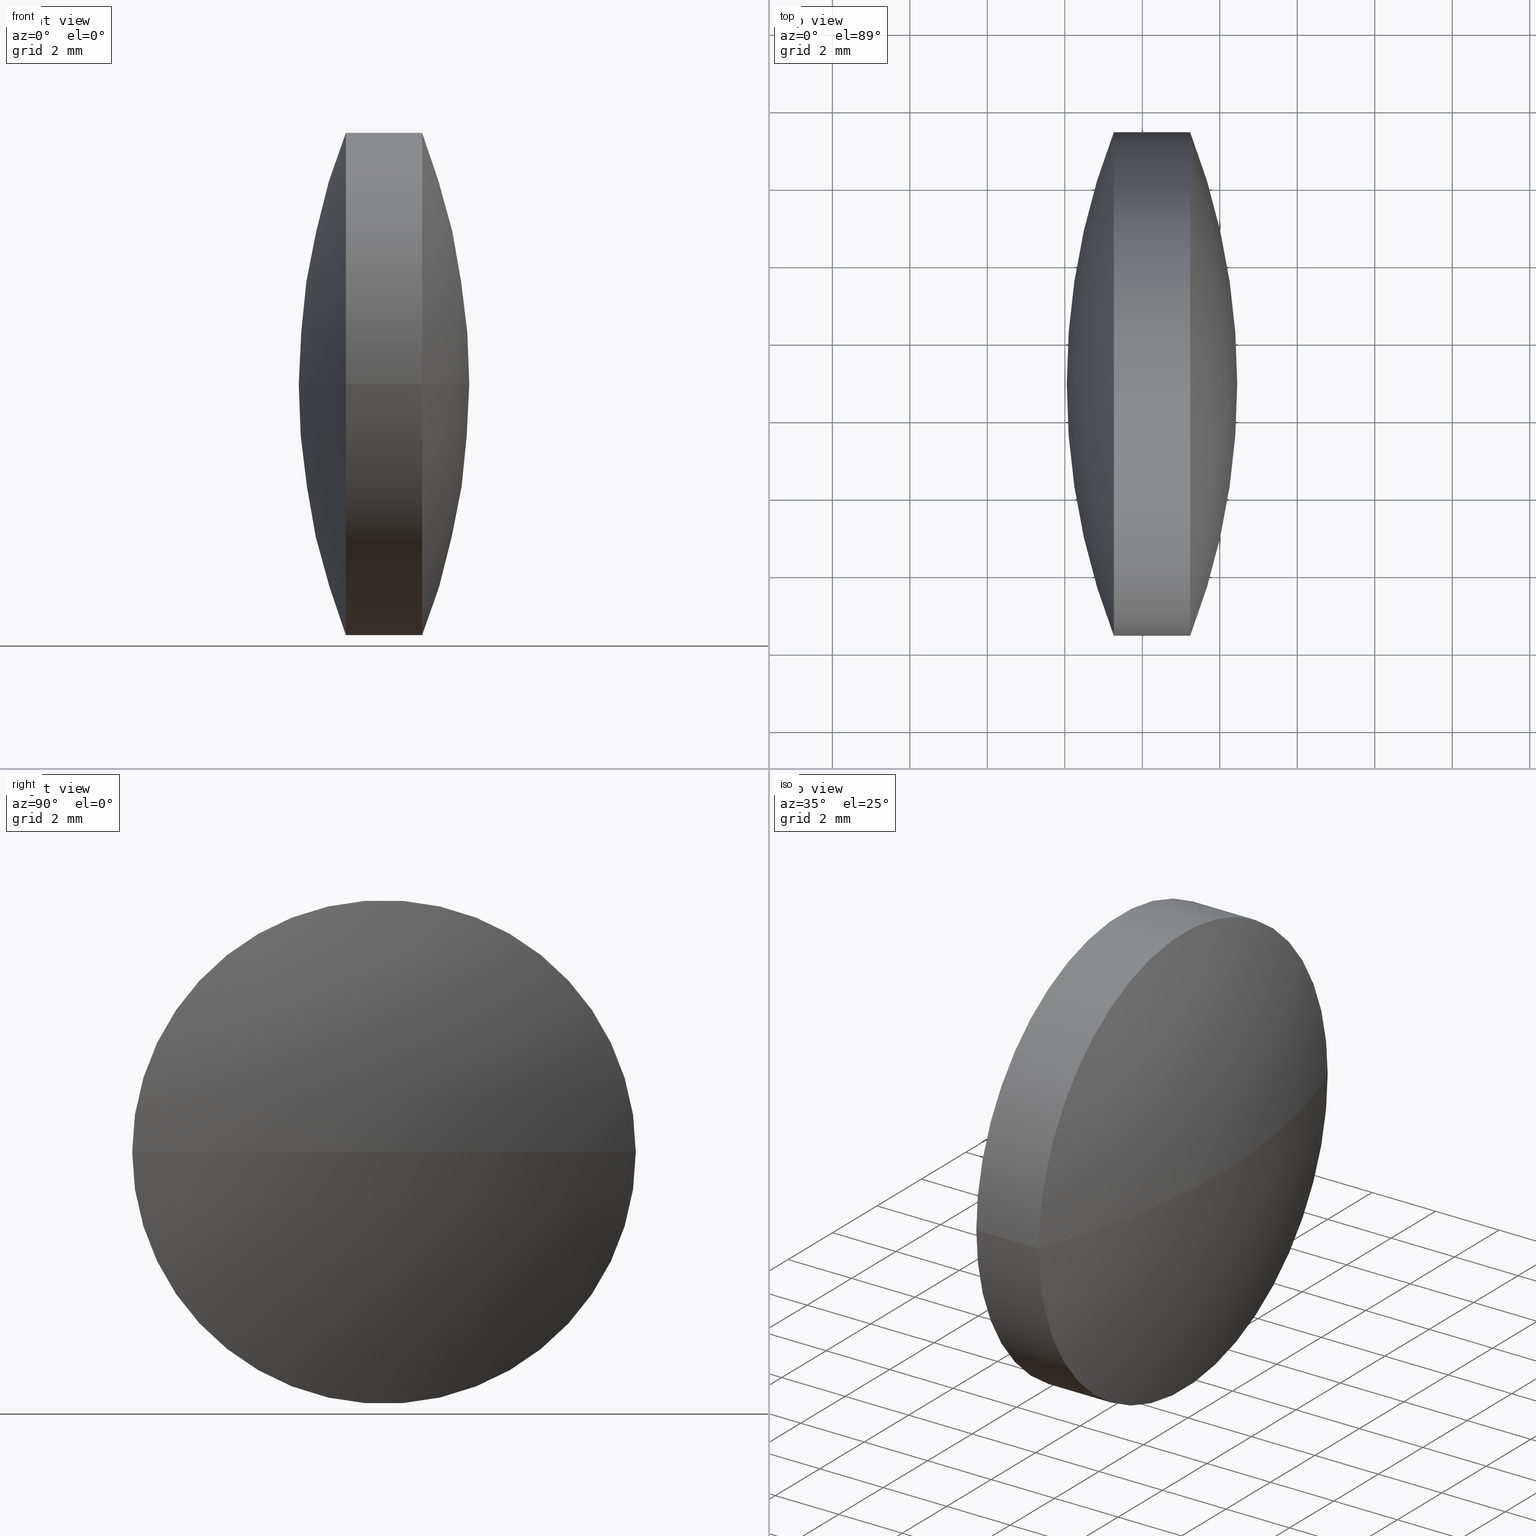
[diagram: canonical four-view strip — front | top / right | iso, engineering-drawing reading convention]
A machine part, canonical four-view strip (front | top / right | iso — engineering-drawing reading convention). The complete STEP part file that produces these views, byte-faithful:
ISO-10303-21;
HEADER;
FILE_DESCRIPTION (( 'STEP AP203' ),
    '1' );
FILE_NAME ('110013.STEP',
    '2019-06-25T02:01:48',
    ( '' ),
    ( '' ),
    'SwSTEP 2.0',
    'SolidWorks 2016',
    '' );
FILE_SCHEMA (( 'CONFIG_CONTROL_DESIGN' ));
ENDSEC;

DATA;
#1 = DATE_AND_TIME ( #101, #107 ) ;
#2 = CC_DESIGN_PERSON_AND_ORGANIZATION_ASSIGNMENT ( #259, #18, ( #289 ) ) ;
#3 = CARTESIAN_POINT ( 'NONE',  ( 28.45595245652157200, 24.88233366330319300, 0.0000000000000000000 ) ) ;
#4 = CIRCLE ( 'NONE', #180, 17.99443062946765100 ) ;
#5 = PERSON ( 'δָ��', 'δָ��', 'δָ��', ('δָ��'), ('δָ��'), ('δָ��') ) ;
#6 = ORIENTED_EDGE ( 'NONE', *, *, #212, .F. ) ;
#7 = PRODUCT_DEFINITION_FORMATION_WITH_SPECIFIED_SOURCE ( '�κ�', '', #279, .NOT_KNOWN. ) ;
#8 = LOCAL_TIME ( 10, 1, 48.00000000000000000, #188 ) ;
#9 = DATE_AND_TIME ( #271, #120 ) ;
#10 = FACE_OUTER_BOUND ( 'NONE', #281, .T. ) ;
#11 = PERSON_AND_ORGANIZATION_ROLE ( 'classification_officer' ) ;
#12 = ORIENTED_EDGE ( 'NONE', *, *, #57, .F. ) ;
#13 = DIRECTION ( 'NONE',  ( 0.0000000000000000000, 0.0000000000000000000, -1.000000000000000000 ) ) ;
#14 = APPROVAL_PERSON_ORGANIZATION ( #122, #84, #126 ) ;
#15 =( LENGTH_UNIT ( ) NAMED_UNIT ( * ) SI_UNIT ( .MILLI., .METRE. ) );
#16 = PRODUCT_RELATED_PRODUCT_CATEGORY ( 'detail', '', ( #283 ) ) ;
#17 = CARTESIAN_POINT ( 'NONE',  ( 28.45595245652157200, 24.88233366330319300, 0.0000000000000000000 ) ) ;
#18 = PERSON_AND_ORGANIZATION_ROLE ( 'design_supplier' ) ;
#19 = CALENDAR_DATE ( 2019, 25, 6 ) ;
#20 = DIRECTION ( 'NONE',  ( -0.0000000000000000000, 0.0000000000000000000, 1.000000000000000000 ) ) ;
#21 = PERSON_AND_ORGANIZATION_ROLE ( 'creator' ) ;
#22 = CARTESIAN_POINT ( 'NONE',  ( 60.04481371545662700, 24.88233366330322100, 0.0000000000000000000 ) ) ;
#23 = CALENDAR_DATE ( 2019, 25, 6 ) ;
#24 = CARTESIAN_POINT ( 'NONE',  ( 60.04481371545662700, 24.88233366330322100, 0.0000000000000000000 ) ) ;
#25 = SHAPE_DEFINITION_REPRESENTATION ( #223, #191 ) ;
#26 = AXIS2_PLACEMENT_3D ( 'NONE', #78, #264, #142 ) ;
#27 = CIRCLE ( 'NONE', #69, 17.99443062946765100 ) ;
#28 = COORDINATED_UNIVERSAL_TIME_OFFSET ( 8, 0, .AHEAD. ) ;
#29 = APPROVAL_DATE_TIME ( #288, #76 ) ;
#30 = ORIENTED_EDGE ( 'NONE', *, *, #162, .T. ) ;
#31 = ORIENTED_EDGE ( 'NONE', *, *, #145, .F. ) ;
#32 = PRODUCT_RELATED_PRODUCT_CATEGORY ( 'detail', '', ( #279 ) ) ;
#33 = PERSON_AND_ORGANIZATION ( #5, #136 ) ;
#34 = APPLICATION_CONTEXT ( 'configuration controlled 3d designs of mechanical parts and assemblies' ) ;
#35 = DIRECTION ( 'NONE',  ( -0.0000000000000000000, 0.0000000000000000000, -1.000000000000000000 ) ) ;
#36 = AXIS2_PLACEMENT_3D ( 'NONE', #17, #20, #103 ) ;
#37 = CYLINDRICAL_SURFACE ( 'NONE', #163, 6.500018571481612100 ) ;
#38 = CARTESIAN_POINT ( 'NONE',  ( 40.95996140012911700, 24.88233366330319300, 0.0000000000000000000 ) ) ;
#39 = ORIENTED_EDGE ( 'NONE', *, *, #89, .F. ) ;
#40 = PERSON_AND_ORGANIZATION ( #5, #136 ) ;
#41 = SECURITY_CLASSIFICATION_LEVEL ( 'unclassified' ) ;
#42 = APPLICATION_PROTOCOL_DEFINITION ( 'international standard', 'config_control_design', 1994, #66 ) ;
#43 = CC_DESIGN_APPROVAL ( #84, ( #260 ) ) ;
#44 = CARTESIAN_POINT ( 'NONE',  ( 45.23538308598923400, 31.38235223478481800, 7.960226937963231700E-016 ) ) ;
#45 = APPLICATION_CONTEXT ( 'configuration controlled 3d designs of mechanical parts and assemblies' ) ;
#46 = VERTEX_POINT ( 'NONE', #224 ) ;
#47 = CALENDAR_DATE ( 2019, 25, 6 ) ;
#48 = APPROVAL_DATE_TIME ( #119, #218 ) ;
#49 = CC_DESIGN_SECURITY_CLASSIFICATION ( #243, ( #289 ) ) ;
#50 = DIRECTION ( 'NONE',  ( -0.0000000000000000000, 0.0000000000000000000, 1.000000000000000000 ) ) ;
#51 = ADVANCED_FACE ( 'NONE', ( #234 ), #268, .T. ) ;
#52 = AXIS2_PLACEMENT_3D ( 'NONE', #284, #50, #161 ) ;
#53 = DATE_AND_TIME ( #23, #8 ) ;
#54 = SPHERICAL_SURFACE ( 'NONE', #36, 17.99443062946765100 ) ;
#55 = CC_DESIGN_APPROVAL ( #76, ( #289 ) ) ;
#56 = DATE_TIME_ROLE ( 'classification_date' ) ;
#57 = EDGE_CURVE ( 'NONE', #230, #46, #211, .T. ) ;
#58 = DIRECTION ( 'NONE',  ( -4.241747600392880700E-015, 1.000000000000000000, 0.0000000000000000000 ) ) ;
#59 = ORIENTED_EDGE ( 'NONE', *, *, #265, .T. ) ;
#60 = APPROVAL_PERSON_ORGANIZATION ( #250, #62, #199 ) ;
#61 = DIRECTION ( 'NONE',  ( 0.0000000000000000000, 0.0000000000000000000, 1.000000000000000000 ) ) ;
#62 = APPROVAL ( #299, 'δָ��' ) ;
#63 = CIRCLE ( 'NONE', #280, 6.500018571481608600 ) ;
#64 = DIRECTION ( 'NONE',  ( 4.270076355997599800E-015, -1.000000000000000000, 0.0000000000000000000 ) ) ;
#65 = CARTESIAN_POINT ( 'NONE',  ( 42.05038308598922500, 24.88233366330314300, 0.0000000000000000000 ) ) ;
#66 = APPLICATION_CONTEXT ( 'configuration controlled 3d designs of mechanical parts and assemblies' ) ;
#67 = LOCAL_TIME ( 10, 1, 48.00000000000000000, #242 ) ;
#68 = DIRECTION ( 'NONE',  ( 4.270076355997597500E-015, -1.000000000000000000, 0.0000000000000000000 ) ) ;
#69 = AXIS2_PLACEMENT_3D ( 'NONE', #148, #13, #81 ) ;
#70 = AXIS2_PLACEMENT_3D ( 'NONE', #24, #278, #248 ) ;
#71 = FACE_OUTER_BOUND ( 'NONE', #151, .T. ) ;
#72 = CC_DESIGN_PERSON_AND_ORGANIZATION_ASSIGNMENT ( #194, #11, ( #243 ) ) ;
#73 = EDGE_CURVE ( 'NONE', #112, #230, #63, .T. ) ;
#74 = LOCAL_TIME ( 10, 1, 48.00000000000000000, #131 ) ;
#75 = CIRCLE ( 'NONE', #173, 6.500018571481615700 ) ;
#76 = APPROVAL ( #156, 'δָ��' ) ;
#77 = DATE_AND_TIME ( #262, #125 ) ;
#78 = CARTESIAN_POINT ( 'NONE',  ( 0.0000000000000000000, 0.0000000000000000000, 0.0000000000000000000 ) ) ;
#79 = APPROVAL_ROLE ( '' ) ;
#80 = CALENDAR_DATE ( 2019, 25, 6 ) ;
#81 = DIRECTION ( 'NONE',  ( -1.000000000000000000, 0.0000000000000000000, 0.0000000000000000000 ) ) ;
#82 =( GEOMETRIC_REPRESENTATION_CONTEXT ( 3 ) GLOBAL_UNCERTAINTY_ASSIGNED_CONTEXT ( ( #293 ) ) GLOBAL_UNIT_ASSIGNED_CONTEXT ( ( #15, #171, #196 ) ) REPRESENTATION_CONTEXT ( 'NONE', 'WORKASPACE' ) );
#83 = LOCAL_TIME ( 10, 1, 48.00000000000000000, #141 ) ;
#84 = APPROVAL ( #155, 'δָ��' ) ;
#85 = CALENDAR_DATE ( 2019, 25, 6 ) ;
#86 = DIRECTION ( 'NONE',  ( -1.000000000000000000, -4.344046041914963800E-015, -0.0000000000000000000 ) ) ;
#87 = DATE_TIME_ROLE ( 'creation_date' ) ;
#88 = CC_DESIGN_APPROVAL ( #127, ( #243 ) ) ;
#89 = EDGE_CURVE ( 'NONE', #249, #254, #124, .T. ) ;
#90 = SPHERICAL_SURFACE ( 'NONE', #52, 17.99443062946765100 ) ;
#91 = EDGE_LOOP ( 'NONE', ( #193, #59, #187 ) ) ;
#92 = CC_DESIGN_SECURITY_CLASSIFICATION ( #260, ( #7 ) ) ;
#93 = DATE_AND_TIME ( #214, #74 ) ;
#94 = ADVANCED_FACE ( 'NONE', ( #10 ), #37, .T. ) ;
#95 = APPROVAL ( #97, 'δָ��' ) ;
#96 = LOCAL_TIME ( 10, 1, 48.00000000000000000, #192 ) ;
#97 = APPROVAL_STATUS ( 'not_yet_approved' ) ;
#98 = CC_DESIGN_PERSON_AND_ORGANIZATION_ASSIGNMENT ( #203, #21, ( #289 ) ) ;
#99 = DIRECTION ( 'NONE',  ( 1.000000000000000000, 0.0000000000000000000, 0.0000000000000000000 ) ) ;
#100 = EDGE_LOOP ( 'NONE', ( #305, #108, #287 ) ) ;
#101 = CALENDAR_DATE ( 2019, 25, 6 ) ;
#102 = PERSON_AND_ORGANIZATION ( #5, #136 ) ;
#103 = DIRECTION ( 'NONE',  ( 4.434554309501586900E-015, -1.000000000000000000, 0.0000000000000000000 ) ) ;
#104 = APPROVAL_ROLE ( '' ) ;
#105 = DIRECTION ( 'NONE',  ( -1.000000000000000000, -4.344046041914963800E-015, -0.0000000000000000000 ) ) ;
#106 = DIRECTION ( 'NONE',  ( -1.000000000000000000, -4.344046041914963800E-015, -0.0000000000000000000 ) ) ;
#107 = LOCAL_TIME ( 10, 1, 48.00000000000000000, #210 ) ;
#108 = ORIENTED_EDGE ( 'NONE', *, *, #113, .T. ) ;
#109 = DIRECTION ( 'NONE',  ( 0.0000000000000000000, -1.000000000000000000, -1.224646799147353200E-016 ) ) ;
#110 = FACE_OUTER_BOUND ( 'NONE', #91, .T. ) ;
#111 = DIRECTION ( 'NONE',  ( 4.270076355997595100E-015, -1.000000000000000000, 0.0000000000000000000 ) ) ;
#112 = VERTEX_POINT ( 'NONE', #294 ) ;
#113 = EDGE_CURVE ( 'NONE', #178, #230, #4, .T. ) ;
#114 = CC_DESIGN_DATE_AND_TIME_ASSIGNMENT ( #116, #201, ( #260 ) ) ;
#115 = EDGE_LOOP ( 'NONE', ( #39, #238, #297 ) ) ;
#116 = DATE_AND_TIME ( #80, #83 ) ;
#117 = VECTOR ( 'NONE', #204, 1000.000000000000000 ) ;
#118 = PERSON_AND_ORGANIZATION_ROLE ( 'creator' ) ;
#119 = DATE_AND_TIME ( #85, #96 ) ;
#120 = LOCAL_TIME ( 10, 1, 48.00000000000000000, #209 ) ;
#121 = DIRECTION ( 'NONE',  ( -0.0000000000000000000, 0.0000000000000000000, 1.000000000000000000 ) ) ;
#122 = PERSON_AND_ORGANIZATION ( #5, #136 ) ;
#123 = CC_DESIGN_APPROVAL ( #95, ( #240 ) ) ;
#124 = CIRCLE ( 'NONE', #226, 17.99443062946740600 ) ;
#125 = LOCAL_TIME ( 10, 1, 48.00000000000000000, #219 ) ;
#126 = APPROVAL_ROLE ( '' ) ;
#127 = APPROVAL ( #236, 'δָ��' ) ;
#128 = ADVANCED_FACE ( 'NONE', ( #190 ), #90, .T. ) ;
#129 = EDGE_CURVE ( 'NONE', #249, #46, #229, .T. ) ;
#130 = CC_DESIGN_PERSON_AND_ORGANIZATION_ASSIGNMENT ( #282, #133, ( #7 ) ) ;
#131 = COORDINATED_UNIVERSAL_TIME_OFFSET ( 8, 0, .AHEAD. ) ;
#132 = VECTOR ( 'NONE', #200, 1000.000000000000000 ) ;
#133 = PERSON_AND_ORGANIZATION_ROLE ( 'design_supplier' ) ;
#134 = CC_DESIGN_PERSON_AND_ORGANIZATION_ASSIGNMENT ( #275, #222, ( #283 ) ) ;
#135 = CARTESIAN_POINT ( 'NONE',  ( 43.26538308598926400, 24.88233366330320400, 0.0000000000000000000 ) ) ;
#136 = ORGANIZATION ( 'δָ��', 'δָ��', '' ) ;
#137 = APPROVAL_PERSON_ORGANIZATION ( #33, #127, #79 ) ;
#138 = MANIFOLD_SOLID_BREP ( '��ת1', #241 ) ;
#139 = PERSON_AND_ORGANIZATION ( #5, #136 ) ;
#140 = CC_DESIGN_PERSON_AND_ORGANIZATION_ASSIGNMENT ( #102, #118, ( #240 ) ) ;
#141 = COORDINATED_UNIVERSAL_TIME_OFFSET ( 8, 0, .AHEAD. ) ;
#142 = DIRECTION ( 'NONE',  ( 1.000000000000000000, 0.0000000000000000000, 0.0000000000000000000 ) ) ;
#143 = CC_DESIGN_APPROVAL ( #62, ( #153 ) ) ;
#144 = MECHANICAL_CONTEXT ( 'NONE', #168, 'mechanical' ) ;
#145 = EDGE_CURVE ( 'NONE', #46, #254, #174, .T. ) ;
#146 = APPROVAL_DATE_TIME ( #298, #84 ) ;
#147 = AXIS2_PLACEMENT_3D ( 'NONE', #38, #267, #169 ) ;
#148 = CARTESIAN_POINT ( 'NONE',  ( 28.45595245652157200, 24.88233366330319300, 0.0000000000000000000 ) ) ;
#149 = LINE ( 'NONE', #272, #132 ) ;
#150 = CARTESIAN_POINT ( 'NONE',  ( 0.0000000000000000000, 0.0000000000000000000, 0.0000000000000000000 ) ) ;
#151 = EDGE_LOOP ( 'NONE', ( #164, #183, #159, #6 ) ) ;
#152 = LOCAL_TIME ( 10, 1, 48.00000000000000000, #28 ) ;
#153 = PRODUCT_DEFINITION ( 'δ֪', '', #289, #251 ) ;
#154 = DIRECTION ( 'NONE',  ( 4.270076355997595100E-015, -1.000000000000000000, 0.0000000000000000000 ) ) ;
#155 = APPROVAL_STATUS ( 'not_yet_approved' ) ;
#156 = APPROVAL_STATUS ( 'not_yet_approved' ) ;
#157 = ORIENTED_EDGE ( 'NONE', *, *, #212, .T. ) ;
#158 = AXIS2_PLACEMENT_3D ( 'NONE', #301, #198, #64 ) ;
#159 = ORIENTED_EDGE ( 'NONE', *, *, #129, .F. ) ;
#160 = APPROVAL_PERSON_ORGANIZATION ( #186, #218, #296 ) ;
#161 = DIRECTION ( 'NONE',  ( 4.434554309501586900E-015, -1.000000000000000000, 0.0000000000000000000 ) ) ;
#162 = EDGE_CURVE ( 'NONE', #230, #112, #167, .T. ) ;
#163 = AXIS2_PLACEMENT_3D ( 'NONE', #181, #105, #68 ) ;
#164 = ORIENTED_EDGE ( 'NONE', *, *, #73, .T. ) ;
#165 = LOCAL_TIME ( 10, 1, 48.00000000000000000, #227 ) ;
#166 = PERSON_AND_ORGANIZATION ( #5, #136 ) ;
#167 = CIRCLE ( 'NONE', #158, 6.500018571481608600 ) ;
#168 = APPLICATION_CONTEXT ( 'configuration controlled 3d designs of mechanical parts and assemblies' ) ;
#169 = DIRECTION ( 'NONE',  ( 4.270076355997597500E-015, -1.000000000000000000, 0.0000000000000000000 ) ) ;
#170 = EDGE_LOOP ( 'NONE', ( #213, #247, #31 ) ) ;
#171 =( NAMED_UNIT ( * ) PLANE_ANGLE_UNIT ( ) SI_UNIT ( $, .RADIAN. ) );
#172 = APPROVAL_DATE_TIME ( #53, #62 ) ;
#173 = AXIS2_PLACEMENT_3D ( 'NONE', #175, #86, #154 ) ;
#174 = CIRCLE ( 'NONE', #225, 17.99443062946740200 ) ;
#175 = CARTESIAN_POINT ( 'NONE',  ( 43.26538308598926400, 24.88233366330320400, 0.0000000000000000000 ) ) ;
#176 = SECURITY_CLASSIFICATION_LEVEL ( 'unclassified' ) ;
#177 = PERSON_AND_ORGANIZATION_ROLE ( 'creator' ) ;
#178 = VERTEX_POINT ( 'NONE', #221 ) ;
#179 = EDGE_CURVE ( 'NONE', #46, #249, #75, .T. ) ;
#180 = AXIS2_PLACEMENT_3D ( 'NONE', #3, #255, #109 ) ;
#181 = CARTESIAN_POINT ( 'NONE',  ( 40.95996140012911700, 24.88233366330319300, 0.0000000000000000000 ) ) ;
#182 = CALENDAR_DATE ( 2019, 25, 6 ) ;
#183 = ORIENTED_EDGE ( 'NONE', *, *, #57, .T. ) ;
#184 = CC_DESIGN_PERSON_AND_ORGANIZATION_ASSIGNMENT ( #266, #177, ( #153 ) ) ;
#185 = ADVANCED_FACE ( 'NONE', ( #110 ), #54, .T. ) ;
#186 = PERSON_AND_ORGANIZATION ( #5, #136 ) ;
#187 = ORIENTED_EDGE ( 'NONE', *, *, #162, .F. ) ;
#188 = COORDINATED_UNIVERSAL_TIME_OFFSET ( 8, 0, .AHEAD. ) ;
#189 = CC_DESIGN_PERSON_AND_ORGANIZATION_ASSIGNMENT ( #166, #235, ( #279 ) ) ;
#190 = FACE_OUTER_BOUND ( 'NONE', #100, .T. ) ;
#191 = ADVANCED_BREP_SHAPE_REPRESENTATION ( '110013', ( #138, #295 ), #82 ) ;
#192 = COORDINATED_UNIVERSAL_TIME_OFFSET ( 8, 0, .AHEAD. ) ;
#193 = ORIENTED_EDGE ( 'NONE', *, *, #113, .F. ) ;
#194 = PERSON_AND_ORGANIZATION ( #5, #136 ) ;
#195 = DATE_TIME_ROLE ( 'creation_date' ) ;
#196 =( NAMED_UNIT ( * ) SI_UNIT ( $, .STERADIAN. ) SOLID_ANGLE_UNIT ( ) );
#197 = SPHERICAL_SURFACE ( 'NONE', #277, 17.99443062946740200 ) ;
#198 = DIRECTION ( 'NONE',  ( -1.000000000000000000, -4.344046041914963800E-015, -0.0000000000000000000 ) ) ;
#199 = APPROVAL_ROLE ( '' ) ;
#200 = DIRECTION ( 'NONE',  ( -1.000000000000000000, -4.344046041914963800E-015, -0.0000000000000000000 ) ) ;
#201 = DATE_TIME_ROLE ( 'classification_date' ) ;
#202 = DIRECTION ( 'NONE',  ( 1.000000000000000000, 0.0000000000000000000, 0.0000000000000000000 ) ) ;
#203 = PERSON_AND_ORGANIZATION ( #5, #136 ) ;
#204 = DIRECTION ( 'NONE',  ( -1.000000000000000000, -4.344046041914963800E-015, -0.0000000000000000000 ) ) ;
#205 = CARTESIAN_POINT ( 'NONE',  ( 45.23538308598926200, 24.88233366330321100, 0.0000000000000000000 ) ) ;
#206 = FACE_OUTER_BOUND ( 'NONE', #115, .T. ) ;
#207 = CC_DESIGN_DATE_AND_TIME_ASSIGNMENT ( #257, #195, ( #240 ) ) ;
#208 = APPROVAL_DATE_TIME ( #77, #95 ) ;
#209 = COORDINATED_UNIVERSAL_TIME_OFFSET ( 8, 0, .AHEAD. ) ;
#210 = COORDINATED_UNIVERSAL_TIME_OFFSET ( 8, 0, .AHEAD. ) ;
#211 = LINE ( 'NONE', #252, #117 ) ;
#212 = EDGE_CURVE ( 'NONE', #112, #249, #149, .T. ) ;
#213 = ORIENTED_EDGE ( 'NONE', *, *, #179, .T. ) ;
#214 = CALENDAR_DATE ( 2019, 25, 6 ) ;
#215 = CC_DESIGN_DATE_AND_TIME_ASSIGNMENT ( #93, #56, ( #243 ) ) ;
#216 = APPROVAL_STATUS ( 'not_yet_approved' ) ;
#217 = CARTESIAN_POINT ( 'NONE',  ( 60.04481371545662700, 24.88233366330322100, 0.0000000000000000000 ) ) ;
#218 = APPROVAL ( #216, 'δָ��' ) ;
#219 = COORDINATED_UNIVERSAL_TIME_OFFSET ( 8, 0, .AHEAD. ) ;
#220 = APPROVAL_DATE_TIME ( #9, #127 ) ;
#221 = CARTESIAN_POINT ( 'NONE',  ( 46.45038308598923000, 24.88233366330327100, 0.0000000000000000000 ) ) ;
#222 = PERSON_AND_ORGANIZATION_ROLE ( 'design_owner' ) ;
#223 = PRODUCT_DEFINITION_SHAPE ( 'NONE', 'NONE',  #153 ) ;
#224 = CARTESIAN_POINT ( 'NONE',  ( 43.26538308598923500, 31.38235223478483200, 0.0000000000000000000 ) ) ;
#225 = AXIS2_PLACEMENT_3D ( 'NONE', #239, #121, #202 ) ;
#226 = AXIS2_PLACEMENT_3D ( 'NONE', #22, #302, #274 ) ;
#227 = COORDINATED_UNIVERSAL_TIME_OFFSET ( 8, 0, .AHEAD. ) ;
#228 = PERSON_AND_ORGANIZATION_ROLE ( 'creator' ) ;
#229 = CIRCLE ( 'NONE', #290, 6.500018571481615700 ) ;
#230 = VERTEX_POINT ( 'NONE', #44 ) ;
#231 = ORIENTED_EDGE ( 'NONE', *, *, #179, .F. ) ;
#232 = APPROVAL_PERSON_ORGANIZATION ( #139, #76, #104 ) ;
#233 = CC_DESIGN_APPROVAL ( #218, ( #7 ) ) ;
#234 = FACE_OUTER_BOUND ( 'NONE', #170, .T. ) ;
#235 = PERSON_AND_ORGANIZATION_ROLE ( 'design_owner' ) ;
#236 = APPROVAL_STATUS ( 'not_yet_approved' ) ;
#237 = APPLICATION_PROTOCOL_DEFINITION ( 'international standard', 'config_control_design', 1994, #34 ) ;
#238 = ORIENTED_EDGE ( 'NONE', *, *, #129, .T. ) ;
#239 = CARTESIAN_POINT ( 'NONE',  ( 60.04481371545662700, 24.88233366330322100, 0.0000000000000000000 ) ) ;
#240 = PRODUCT_DEFINITION ( 'δ֪', '', #7, #286 ) ;
#241 = CLOSED_SHELL ( 'NONE', ( #285, #128, #51, #304, #185, #94 ) ) ;
#242 = COORDINATED_UNIVERSAL_TIME_OFFSET ( 8, 0, .AHEAD. ) ;
#243 = SECURITY_CLASSIFICATION ( '', '', #176 ) ;
#244 = CARTESIAN_POINT ( 'NONE',  ( 43.26538308598929200, 18.38231509182151800, -7.960226937963326300E-016 ) ) ;
#245 = PERSON_AND_ORGANIZATION_ROLE ( 'classification_officer' ) ;
#246 = APPROVAL_PERSON_ORGANIZATION ( #291, #95, #263 ) ;
#247 = ORIENTED_EDGE ( 'NONE', *, *, #89, .T. ) ;
#248 = DIRECTION ( 'NONE',  ( -4.241747600392880700E-015, 1.000000000000000000, 0.0000000000000000000 ) ) ;
#249 = VERTEX_POINT ( 'NONE', #244 ) ;
#250 = PERSON_AND_ORGANIZATION ( #5, #136 ) ;
#251 = DESIGN_CONTEXT ( 'detailed design', #66, 'design' ) ;
#252 = CARTESIAN_POINT ( 'NONE',  ( 40.95996140012909600, 31.38235223478480400, 7.960226937963307600E-016 ) ) ;
#253 = CC_DESIGN_PERSON_AND_ORGANIZATION_ASSIGNMENT ( #40, #228, ( #7 ) ) ;
#254 = VERTEX_POINT ( 'NONE', #65 ) ;
#255 = DIRECTION ( 'NONE',  ( 5.319922080579889100E-031, -1.224646799147353200E-016, 1.000000000000000000 ) ) ;
#256 = DIRECTION ( 'NONE',  ( -1.000000000000000000, -4.344046041914963800E-015, -0.0000000000000000000 ) ) ;
#257 = DATE_AND_TIME ( #19, #152 ) ;
#258 = PRODUCT_DEFINITION_SHAPE ( 'NONE', 'NONE',  #240 ) ;
#259 = PERSON_AND_ORGANIZATION ( #5, #136 ) ;
#260 = SECURITY_CLASSIFICATION ( '', '', #41 ) ;
#261 = CYLINDRICAL_SURFACE ( 'NONE', #147, 6.500018571481612100 ) ;
#262 = CALENDAR_DATE ( 2019, 25, 6 ) ;
#263 = APPROVAL_ROLE ( '' ) ;
#264 = DIRECTION ( 'NONE',  ( 0.0000000000000000000, 0.0000000000000000000, 1.000000000000000000 ) ) ;
#265 = EDGE_CURVE ( 'NONE', #178, #112, #27, .T. ) ;
#266 = PERSON_AND_ORGANIZATION ( #5, #136 ) ;
#267 = DIRECTION ( 'NONE',  ( -1.000000000000000000, -4.344046041914963800E-015, -0.0000000000000000000 ) ) ;
#268 = SPHERICAL_SURFACE ( 'NONE', #70, 17.99443062946740200 ) ;
#269 = CC_DESIGN_PERSON_AND_ORGANIZATION_ASSIGNMENT ( #270, #245, ( #260 ) ) ;
#270 = PERSON_AND_ORGANIZATION ( #5, #136 ) ;
#271 = CALENDAR_DATE ( 2019, 25, 6 ) ;
#272 = CARTESIAN_POINT ( 'NONE',  ( 40.95996140012914600, 18.38231509182158200, 0.0000000000000000000 ) ) ;
#273 = APPLICATION_PROTOCOL_DEFINITION ( 'international standard', 'config_control_design', 1994, #45 ) ;
#274 = DIRECTION ( 'NONE',  ( 0.0000000000000000000, 1.000000000000000000, 1.224646799147353000E-016 ) ) ;
#275 = PERSON_AND_ORGANIZATION ( #5, #136 ) ;
#276 = DIRECTION ( 'NONE',  ( 4.270076355997599800E-015, -1.000000000000000000, 0.0000000000000000000 ) ) ;
#277 = AXIS2_PLACEMENT_3D ( 'NONE', #217, #35, #58 ) ;
#278 = DIRECTION ( 'NONE',  ( -0.0000000000000000000, 0.0000000000000000000, -1.000000000000000000 ) ) ;
#279 = PRODUCT ( '110013', '110013', '', ( #144 ) ) ;
#280 = AXIS2_PLACEMENT_3D ( 'NONE', #205, #106, #276 ) ;
#281 = EDGE_LOOP ( 'NONE', ( #12, #30, #157, #231 ) ) ;
#282 = PERSON_AND_ORGANIZATION ( #5, #136 ) ;
#283 = PRODUCT ( '110013', '110013', '', ( #303 ) ) ;
#284 = CARTESIAN_POINT ( 'NONE',  ( 28.45595245652157200, 24.88233366330319300, 0.0000000000000000000 ) ) ;
#285 = ADVANCED_FACE ( 'NONE', ( #71 ), #261, .T. ) ;
#286 = DESIGN_CONTEXT ( 'detailed design', #34, 'design' ) ;
#287 = ORIENTED_EDGE ( 'NONE', *, *, #73, .F. ) ;
#288 = DATE_AND_TIME ( #47, #165 ) ;
#289 = PRODUCT_DEFINITION_FORMATION_WITH_SPECIFIED_SOURCE ( '�κ�', '', #283, .NOT_KNOWN. ) ;
#290 = AXIS2_PLACEMENT_3D ( 'NONE', #135, #256, #111 ) ;
#291 = PERSON_AND_ORGANIZATION ( #5, #136 ) ;
#292 = APPLICATION_PROTOCOL_DEFINITION ( 'international standard', 'config_control_design', 1994, #168 ) ;
#293 = UNCERTAINTY_MEASURE_WITH_UNIT (LENGTH_MEASURE( 1.000000000000000100E-005 ), #15, 'distance_accuracy_value', 'NONE');
#294 = CARTESIAN_POINT ( 'NONE',  ( 45.23538308598929100, 18.38231509182166000, 0.0000000000000000000 ) ) ;
#295 = AXIS2_PLACEMENT_3D ( 'NONE', #150, #61, #99 ) ;
#296 = APPROVAL_ROLE ( '' ) ;
#297 = ORIENTED_EDGE ( 'NONE', *, *, #145, .T. ) ;
#298 = DATE_AND_TIME ( #182, #67 ) ;
#299 = APPROVAL_STATUS ( 'not_yet_approved' ) ;
#300 = CC_DESIGN_DATE_AND_TIME_ASSIGNMENT ( #1, #87, ( #153 ) ) ;
#301 = CARTESIAN_POINT ( 'NONE',  ( 45.23538308598926200, 24.88233366330321100, 0.0000000000000000000 ) ) ;
#302 = DIRECTION ( 'NONE',  ( -5.319922080579889100E-031, 1.224646799147353200E-016, -1.000000000000000000 ) ) ;
#303 = MECHANICAL_CONTEXT ( 'NONE', #45, 'mechanical' ) ;
#304 = ADVANCED_FACE ( 'NONE', ( #206 ), #197, .T. ) ;
#305 = ORIENTED_EDGE ( 'NONE', *, *, #265, .F. ) ;
ENDSEC;
END-ISO-10303-21;
